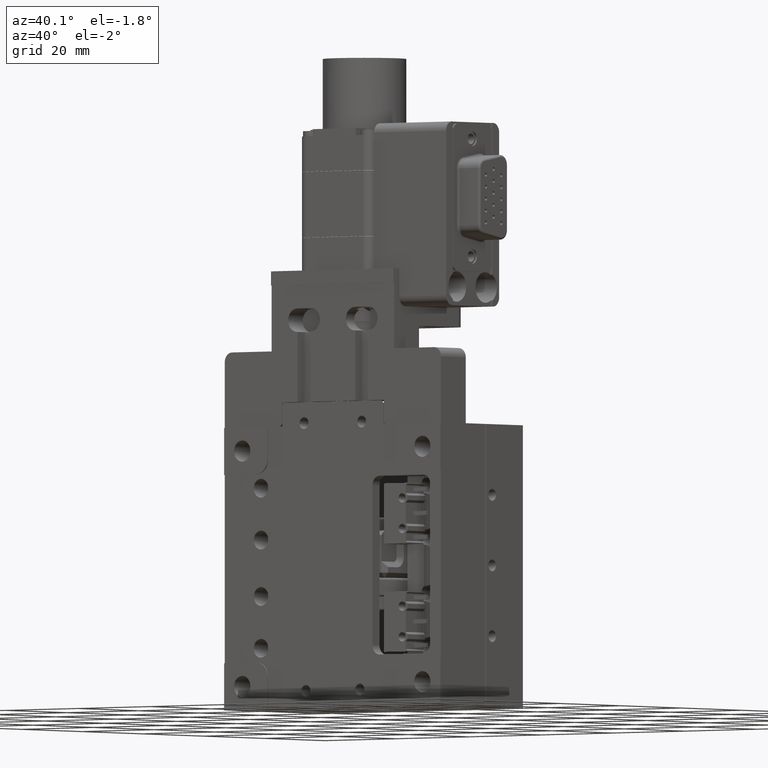
[diagram: clean part render]
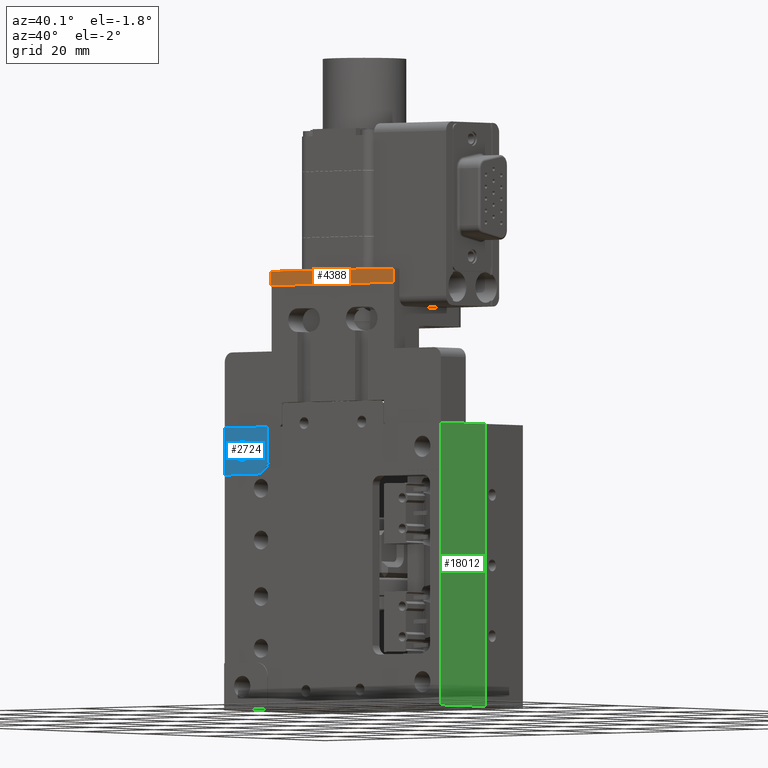
[diagram: same view with three faces highlighted in distinct colors, each labeled with its STEP entity id]
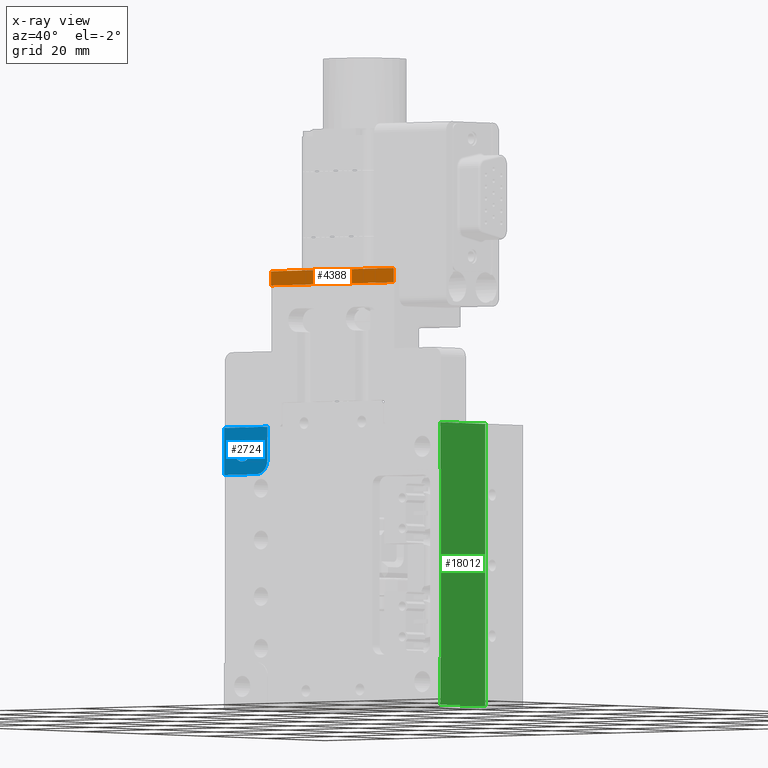
[diagram: x-ray of the same camera — body ghosted, the three highlighted faces saturated]
A machine part, auxiliary view with three faces highlighted in distinct colors.
The next image is the same camera in x-ray (body ghosted, the three faces saturated) — at least one of them is partly hidden behind the body in this view.
Their STEP definitions:

[orange] entity #4388 — the highlighted planar face has unit normal (-0, -1, 0).
#32 = CARTESIAN_POINT ( 'NONE',  ( -19.59171959880750435, -13.09818754598602020, 125.5000000000000000 ) ) ;
#1359 = DIRECTION ( 'NONE',  ( 0.000000000000000000, 0.000000000000000000, -1.000000000000000000 ) ) ;
#1555 = VERTEX_POINT ( 'NONE', #12404 ) ;
#2045 = EDGE_CURVE ( 'NONE', #6617, #7957, #14755, .T. ) ;
#2742 = DIRECTION ( 'NONE',  ( -1.020425574104004739E-16, -1.000000000000000000, 0.000000000000000000 ) ) ;
#4135 = ORIENTED_EDGE ( 'NONE', *, *, #14098, .T. ) ;
#4388 = ADVANCED_FACE ( 'NONE', ( #6675 ), #12364, .T. ) ;
#5011 = VECTOR ( 'NONE', #13639, 1000.000000000000000 ) ;
#5746 = EDGE_LOOP ( 'NONE', ( #5904, #13226, #6023, #4135 ) ) ;
#5904 = ORIENTED_EDGE ( 'NONE', *, *, #11591, .F. ) ;
#6023 = ORIENTED_EDGE ( 'NONE', *, *, #11684, .F. ) ;
#6565 = CARTESIAN_POINT ( 'NONE',  ( -19.59171959880750435, -13.09818754598602020, 125.5000000000000000 ) ) ;
#6571 = VERTEX_POINT ( 'NONE', #32 ) ;
#6617 = VERTEX_POINT ( 'NONE', #8642 ) ;
#6675 = FACE_OUTER_BOUND ( 'NONE', #5746, .T. ) ;
#6813 = VECTOR ( 'NONE', #9384, 1000.000000000000000 ) ;
#6854 = DIRECTION ( 'NONE',  ( 1.000000000000000000, -1.020425574104004739E-16, 0.000000000000000000 ) ) ;
#6877 = CARTESIAN_POINT ( 'NONE',  ( -19.59171959880750435, -13.09818754598602020, 120.5000000000000142 ) ) ;
#7513 = DIRECTION ( 'NONE',  ( -1.000000000000000000, 1.020425574104004739E-16, 0.000000000000000000 ) ) ;
#7957 = VERTEX_POINT ( 'NONE', #11662 ) ;
#8258 = CARTESIAN_POINT ( 'NONE',  ( -2.591719598807524783, -13.09818754598602197, 113.5000000000000000 ) ) ;
#8642 = CARTESIAN_POINT ( 'NONE',  ( 14.40828040119247788, -13.09818754598602375, 122.5000000000000000 ) ) ;
#9384 = DIRECTION ( 'NONE',  ( 1.000000000000000000, -1.020425574104004739E-16, 0.000000000000000000 ) ) ;
#11047 = LINE ( 'NONE', #6565, #6813 ) ;
#11357 = VECTOR ( 'NONE', #1359, 1000.000000000000000 ) ;
#11488 = AXIS2_PLACEMENT_3D ( 'NONE', #8258, #2742, #6854 ) ;
#11591 = EDGE_CURVE ( 'NONE', #6617, #1555, #16271, .T. ) ;
#11614 = VECTOR ( 'NONE', #7513, 1000.000000000000000 ) ;
#11662 = CARTESIAN_POINT ( 'NONE',  ( 14.40828040119247788, -13.09818754598602375, 125.5000000000000000 ) ) ;
#11684 = EDGE_CURVE ( 'NONE', #6571, #7957, #11047, .T. ) ;
#12364 = PLANE ( 'NONE',  #11488 ) ;
#12404 = CARTESIAN_POINT ( 'NONE',  ( -19.59171959880750435, -13.09818754598602020, 122.5000000000000000 ) ) ;
#13107 = CARTESIAN_POINT ( 'NONE',  ( -2.591719598807524783, -13.09818754598602197, 122.5000000000000000 ) ) ;
#13226 = ORIENTED_EDGE ( 'NONE', *, *, #2045, .T. ) ;
#13639 = DIRECTION ( 'NONE',  ( -0.000000000000000000, -0.000000000000000000, 1.000000000000000000 ) ) ;
#14098 = EDGE_CURVE ( 'NONE', #6571, #1555, #14156, .T. ) ;
#14156 = LINE ( 'NONE', #6877, #11357 ) ;
#14755 = LINE ( 'NONE', #15126, #5011 ) ;
#15126 = CARTESIAN_POINT ( 'NONE',  ( 14.40828040119247788, -13.09818754598602375, 120.5000000000000142 ) ) ;
#16271 = LINE ( 'NONE', #13107, #11614 ) ;

[blue] entity #2724 — the highlighted planar face has unit normal (0, -1, 0).
#1503 = ORIENTED_EDGE ( 'NONE', *, *, #5072, .F. ) ;
#1538 = CIRCLE ( 'NONE', #13164, 2.250000000000001776 ) ;
#1568 = PLANE ( 'NONE',  #15531 ) ;
#1708 = LINE ( 'NONE', #7499, #8512 ) ;
#1863 = VERTEX_POINT ( 'NONE', #5720 ) ;
#2425 = CARTESIAN_POINT ( 'NONE',  ( -27.59171959880752567, -13.09818754598603796, 89.75000000000000000 ) ) ;
#2724 = ADVANCED_FACE ( 'NONE', ( #8486, #5671 ), #1568, .T. ) ;
#2966 = CARTESIAN_POINT ( 'NONE',  ( -32.59171959880752212, -13.09818754598603796, 32.50000000000000000 ) ) ;
#3476 = VERTEX_POINT ( 'NONE', #2425 ) ;
#4468 = CARTESIAN_POINT ( 'NONE',  ( -20.59171959880752212, -13.09818754598602908, 85.50000000000001421 ) ) ;
#4491 = EDGE_CURVE ( 'NONE', #12414, #13744, #1708, .T. ) ;
#4504 = ORIENTED_EDGE ( 'NONE', *, *, #6234, .T. ) ;
#5072 = EDGE_CURVE ( 'NONE', #1863, #12414, #7088, .T. ) ;
#5313 = VECTOR ( 'NONE', #11005, 1000.000000000000000 ) ;
#5445 = DIRECTION ( 'NONE',  ( 2.312964634635740689E-15, 0.000000000000000000, -1.000000000000000000 ) ) ;
#5499 = DIRECTION ( 'NONE',  ( -0.000000000000000000, 1.000000000000000000, -0.000000000000000000 ) ) ;
#5671 = FACE_BOUND ( 'NONE', #16281, .T. ) ;
#5720 = CARTESIAN_POINT ( 'NONE',  ( -32.59171959880752212, -13.09818754598602908, 82.50000000000000000 ) ) ;
#6192 = CARTESIAN_POINT ( 'NONE',  ( -34.88544648202812937, -13.09818754598602908, 82.50000000000000000 ) ) ;
#6234 = EDGE_CURVE ( 'NONE', #3476, #3476, #1538, .T. ) ;
#6237 = CARTESIAN_POINT ( 'NONE',  ( -32.59171959880752212, -13.09818754598603796, 92.50000000000000000 ) ) ;
#7088 = LINE ( 'NONE', #2966, #12992 ) ;
#7211 = ORIENTED_EDGE ( 'NONE', *, *, #9005, .F. ) ;
#7260 = DIRECTION ( 'NONE',  ( 0.000000000000000000, -1.000000000000000000, 0.000000000000000000 ) ) ;
#7499 = CARTESIAN_POINT ( 'NONE',  ( 27.40828040119247433, -13.09818754598603796, 92.50000000000000000 ) ) ;
#7681 = CIRCLE ( 'NONE', #10373, 3.000000000000002665 ) ;
#7942 = VERTEX_POINT ( 'NONE', #4468 ) ;
#8127 = CARTESIAN_POINT ( 'NONE',  ( -20.59171959880752212, -13.09818754598602908, 92.50000000000000000 ) ) ;
#8486 = FACE_OUTER_BOUND ( 'NONE', #8944, .T. ) ;
#8512 = VECTOR ( 'NONE', #17562, 1000.000000000000000 ) ;
#8944 = EDGE_LOOP ( 'NONE', ( #7211, #16535, #15640, #1503, #9143 ) ) ;
#9005 = EDGE_CURVE ( 'NONE', #7942, #14726, #7681, .T. ) ;
#9143 = ORIENTED_EDGE ( 'NONE', *, *, #10118, .F. ) ;
#9358 = EDGE_CURVE ( 'NONE', #7942, #13744, #13899, .T. ) ;
#10118 = EDGE_CURVE ( 'NONE', #14726, #1863, #14511, .T. ) ;
#10373 = AXIS2_PLACEMENT_3D ( 'NONE', #12360, #16738, #5445 ) ;
#11005 = DIRECTION ( 'NONE',  ( -0.000000000000000000, -0.000000000000000000, 1.000000000000000000 ) ) ;
#11109 = CARTESIAN_POINT ( 'NONE',  ( -20.59171959880752212, -13.09818754598602908, 92.50000000000000000 ) ) ;
#11891 = DIRECTION ( 'NONE',  ( -1.000000000000000000, -0.000000000000000000, -0.000000000000000000 ) ) ;
#12178 = VECTOR ( 'NONE', #11891, 1000.000000000000000 ) ;
#12360 = CARTESIAN_POINT ( 'NONE',  ( -23.59171959880752212, -13.09818754598602908, 85.49999999999998579 ) ) ;
#12414 = VERTEX_POINT ( 'NONE', #6237 ) ;
#12777 = DIRECTION ( 'NONE',  ( 0.000000000000000000, 0.000000000000000000, 1.000000000000000000 ) ) ;
#12864 = DIRECTION ( 'NONE',  ( 0.000000000000000000, -0.000000000000000000, -1.000000000000000000 ) ) ;
#12992 = VECTOR ( 'NONE', #12777, 1000.000000000000000 ) ;
#13164 = AXIS2_PLACEMENT_3D ( 'NONE', #18199, #5499, #18023 ) ;
#13744 = VERTEX_POINT ( 'NONE', #11109 ) ;
#13899 = LINE ( 'NONE', #8127, #5313 ) ;
#14511 = LINE ( 'NONE', #6192, #12178 ) ;
#14726 = VERTEX_POINT ( 'NONE', #15298 ) ;
#15298 = CARTESIAN_POINT ( 'NONE',  ( -23.59171959880752212, -13.09818754598602908, 82.50000000000000000 ) ) ;
#15531 = AXIS2_PLACEMENT_3D ( 'NONE', #15933, #7260, #12864 ) ;
#15640 = ORIENTED_EDGE ( 'NONE', *, *, #4491, .F. ) ;
#15933 = CARTESIAN_POINT ( 'NONE',  ( 27.40828040119247433, -13.09818754598603796, 32.50000000000000000 ) ) ;
#16281 = EDGE_LOOP ( 'NONE', ( #4504 ) ) ;
#16535 = ORIENTED_EDGE ( 'NONE', *, *, #9358, .T. ) ;
#16738 = DIRECTION ( 'NONE',  ( -0.000000000000000000, 1.000000000000000000, -0.000000000000000000 ) ) ;
#17562 = DIRECTION ( 'NONE',  ( 1.000000000000000000, -0.000000000000000000, -0.000000000000000000 ) ) ;
#18023 = DIRECTION ( 'NONE',  ( 0.000000000000000000, 0.000000000000000000, 1.000000000000000000 ) ) ;
#18199 = CARTESIAN_POINT ( 'NONE',  ( -27.59171959880752567, -13.09818754598603796, 87.50000000000000000 ) ) ;

[green] entity #18012 — the highlighted planar face has unit normal (1, 0, 0).
#95 = ORIENTED_EDGE ( 'NONE', *, *, #6357, .F. ) ;
#243 = VERTEX_POINT ( 'NONE', #1835 ) ;
#381 = CARTESIAN_POINT ( 'NONE',  ( 27.40828040119247433, -13.09818754598603796, 32.50000000000000000 ) ) ;
#933 = VERTEX_POINT ( 'NONE', #14572 ) ;
#1387 = ORIENTED_EDGE ( 'NONE', *, *, #7841, .F. ) ;
#1753 = PLANE ( 'NONE',  #9923 ) ;
#1835 = CARTESIAN_POINT ( 'NONE',  ( 27.40828040119247433, -13.09818754598602908, 42.50000000000000000 ) ) ;
#2096 = EDGE_LOOP ( 'NONE', ( #7771, #13670, #3607, #95, #13406, #7243, #1387, #9180 ) ) ;
#2757 = DIRECTION ( 'NONE',  ( -0.000000000000000000, 1.000000000000000000, 0.000000000000000000 ) ) ;
#2847 = DIRECTION ( 'NONE',  ( 0.000000000000000000, 0.000000000000000000, -1.000000000000000000 ) ) ;
#3607 = ORIENTED_EDGE ( 'NONE', *, *, #11467, .F. ) ;
#4174 = EDGE_CURVE ( 'NONE', #9155, #16049, #13487, .T. ) ;
#4514 = EDGE_CURVE ( 'NONE', #14221, #5206, #7586, .T. ) ;
#4796 = CARTESIAN_POINT ( 'NONE',  ( 27.40828040119247433, -13.09818754598603796, 32.50000000000000000 ) ) ;
#4811 = VECTOR ( 'NONE', #14363, 1000.000000000000000 ) ;
#4936 = CARTESIAN_POINT ( 'NONE',  ( 27.40828040119247433, 1.701812454013962306, 92.50000000000000000 ) ) ;
#5083 = DIRECTION ( 'NONE',  ( 0.000000000000000000, 1.000000000000000000, 0.000000000000000000 ) ) ;
#5161 = EDGE_CURVE ( 'NONE', #933, #6689, #12869, .T. ) ;
#5206 = VERTEX_POINT ( 'NONE', #11650 ) ;
#5519 = VECTOR ( 'NONE', #5083, 1000.000000000000000 ) ;
#5588 = CARTESIAN_POINT ( 'NONE',  ( 27.40828040119247433, -13.09818754598603796, 32.50000000000000000 ) ) ;
#5684 = VECTOR ( 'NONE', #5768, 1000.000000000000000 ) ;
#5768 = DIRECTION ( 'NONE',  ( 0.000000000000000000, 0.000000000000000000, 1.000000000000000000 ) ) ;
#5879 = VECTOR ( 'NONE', #2847, 1000.000000000000000 ) ;
#6357 = EDGE_CURVE ( 'NONE', #9155, #243, #18384, .T. ) ;
#6425 = EDGE_CURVE ( 'NONE', #5206, #933, #16220, .T. ) ;
#6689 = VERTEX_POINT ( 'NONE', #9055 ) ;
#7243 = ORIENTED_EDGE ( 'NONE', *, *, #8645, .F. ) ;
#7586 = LINE ( 'NONE', #12157, #10894 ) ;
#7637 = CARTESIAN_POINT ( 'NONE',  ( 27.40828040119247433, -13.09818754598603796, 32.50000000000000000 ) ) ;
#7771 = ORIENTED_EDGE ( 'NONE', *, *, #6425, .F. ) ;
#7841 = EDGE_CURVE ( 'NONE', #6689, #14583, #13244, .T. ) ;
#8645 = EDGE_CURVE ( 'NONE', #14583, #16049, #16934, .T. ) ;
#9049 = FACE_OUTER_BOUND ( 'NONE', #2096, .T. ) ;
#9055 = CARTESIAN_POINT ( 'NONE',  ( 27.40828040119247433, -13.09818754598603796, 92.50000000000000000 ) ) ;
#9056 = CARTESIAN_POINT ( 'NONE',  ( 27.40828040119247433, -13.09818754598603796, 92.50000000000000000 ) ) ;
#9155 = VERTEX_POINT ( 'NONE', #381 ) ;
#9180 = ORIENTED_EDGE ( 'NONE', *, *, #5161, .F. ) ;
#9774 = CARTESIAN_POINT ( 'NONE',  ( 27.40828040119247433, 1.701812454013962306, 92.50000000000000000 ) ) ;
#9923 = AXIS2_PLACEMENT_3D ( 'NONE', #7637, #13323, #14631 ) ;
#10391 = DIRECTION ( 'NONE',  ( 0.000000000000000000, 0.000000000000000000, 1.000000000000000000 ) ) ;
#10894 = VECTOR ( 'NONE', #10391, 1000.000000000000000 ) ;
#11097 = VECTOR ( 'NONE', #14815, 1000.000000000000000 ) ;
#11467 = EDGE_CURVE ( 'NONE', #243, #14221, #14057, .T. ) ;
#11650 = CARTESIAN_POINT ( 'NONE',  ( 27.40828040119247433, -12.89818754598602446, 82.50000000000000000 ) ) ;
#11936 = DIRECTION ( 'NONE',  ( 0.000000000000000000, 1.000000000000000000, 0.000000000000000000 ) ) ;
#12114 = CARTESIAN_POINT ( 'NONE',  ( 27.40828040119247433, 1.701812454013962306, 32.50000000000000000 ) ) ;
#12157 = CARTESIAN_POINT ( 'NONE',  ( 27.40828040119247433, -12.89818754598602979, 37.50000000000000000 ) ) ;
#12183 = VECTOR ( 'NONE', #2757, 1000.000000000000000 ) ;
#12869 = LINE ( 'NONE', #17067, #5684 ) ;
#13244 = LINE ( 'NONE', #9056, #14396 ) ;
#13323 = DIRECTION ( 'NONE',  ( 1.000000000000000000, 0.000000000000000000, 0.000000000000000000 ) ) ;
#13406 = ORIENTED_EDGE ( 'NONE', *, *, #4174, .T. ) ;
#13487 = LINE ( 'NONE', #4796, #5519 ) ;
#13670 = ORIENTED_EDGE ( 'NONE', *, *, #4514, .F. ) ;
#14057 = LINE ( 'NONE', #16847, #12183 ) ;
#14221 = VERTEX_POINT ( 'NONE', #16548 ) ;
#14363 = DIRECTION ( 'NONE',  ( 0.000000000000000000, 0.000000000000000000, 1.000000000000000000 ) ) ;
#14396 = VECTOR ( 'NONE', #11936, 1000.000000000000000 ) ;
#14572 = CARTESIAN_POINT ( 'NONE',  ( 27.40828040119247433, -13.09818754598602908, 82.50000000000000000 ) ) ;
#14583 = VERTEX_POINT ( 'NONE', #4936 ) ;
#14631 = DIRECTION ( 'NONE',  ( 0.000000000000000000, 0.000000000000000000, -1.000000000000000000 ) ) ;
#14634 = CARTESIAN_POINT ( 'NONE',  ( 27.40828040119247433, -13.09818754598603796, 82.50000000000000000 ) ) ;
#14815 = DIRECTION ( 'NONE',  ( 0.000000000000000000, -1.000000000000000000, 0.000000000000000000 ) ) ;
#16049 = VERTEX_POINT ( 'NONE', #12114 ) ;
#16220 = LINE ( 'NONE', #14634, #11097 ) ;
#16548 = CARTESIAN_POINT ( 'NONE',  ( 27.40828040119247433, -12.89818754598602446, 42.50000000000000000 ) ) ;
#16847 = CARTESIAN_POINT ( 'NONE',  ( 27.40828040119247433, -13.09818754598603796, 42.50000000000000000 ) ) ;
#16934 = LINE ( 'NONE', #9774, #5879 ) ;
#17067 = CARTESIAN_POINT ( 'NONE',  ( 27.40828040119247433, -13.09818754598603796, 32.50000000000000000 ) ) ;
#18012 = ADVANCED_FACE ( 'NONE', ( #9049 ), #1753, .T. ) ;
#18384 = LINE ( 'NONE', #5588, #4811 ) ;